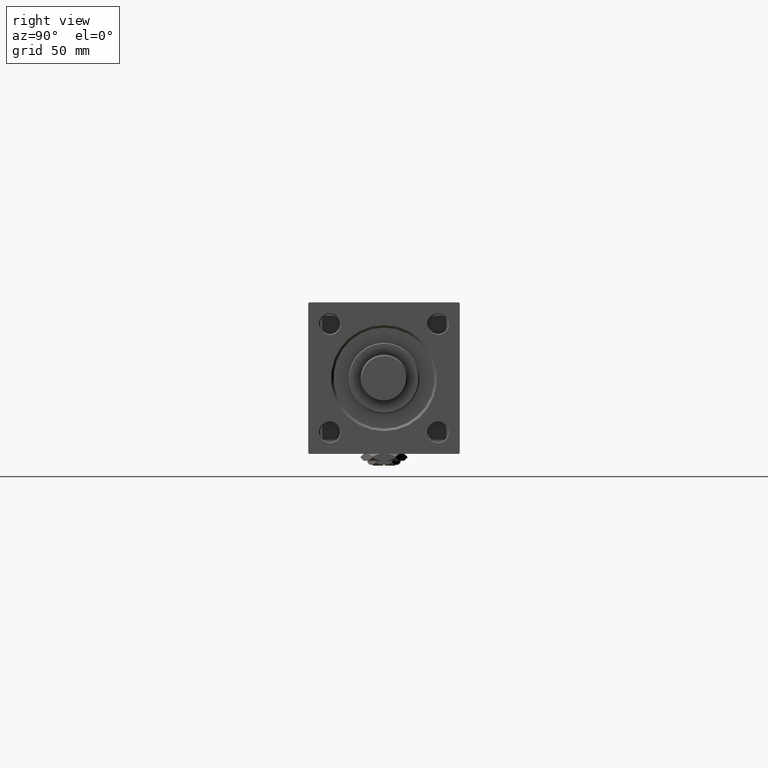
[diagram: clean part render]
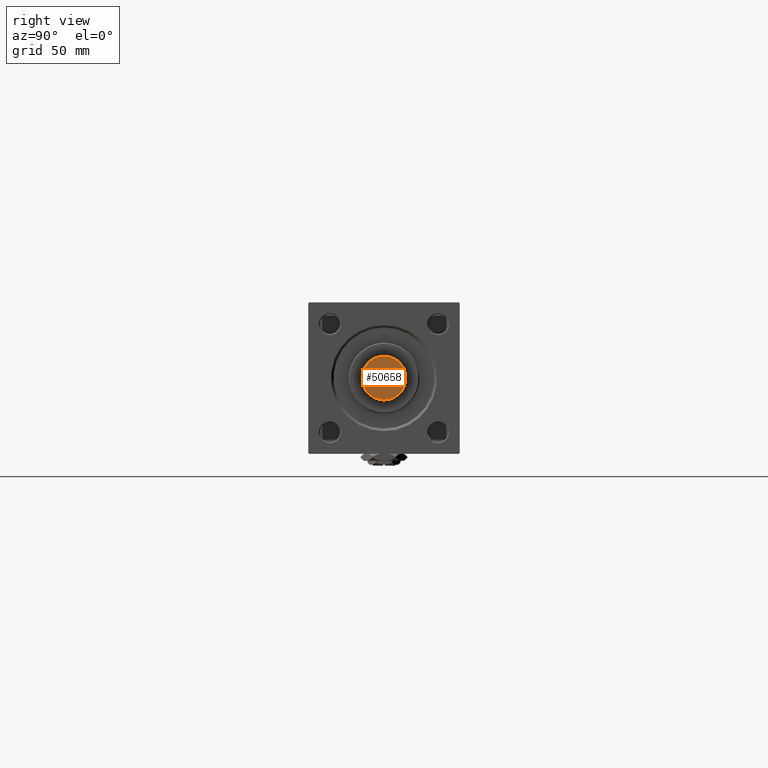
[diagram: same view with one face highlighted and labeled with its STEP entity id]
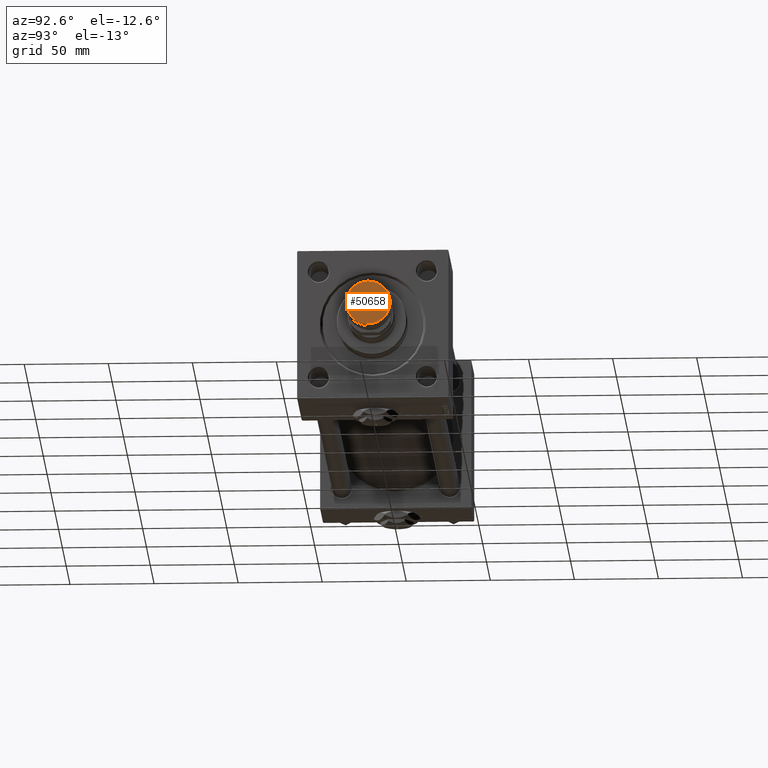
[diagram: same view with one face highlighted and labeled with its STEP entity id]
A machine part, right view. The second image highlights one B-rep face of the part: STEP entity #50658.
A second angle (auxiliary view) of the same face is appended — the face is thin or edge-on in the first view.
In plain terms, the highlighted planar face has unit normal (1, 0, 0).
Its self-contained STEP definition (entity closure, byte-faithful):
#3421 = CARTESIAN_POINT ( 'NONE',  ( 13.00000000000000000, 0.000000000000000000, 0.000000000000000000 ) ) ;
#5833 = CIRCLE ( 'NONE', #43389, 13.00000000000000000 ) ;
#6496 = EDGE_CURVE ( 'NONE', #39241, #44898, #35125, .T. ) ;
#12558 = CARTESIAN_POINT ( 'NONE',  ( 0.000000000000000000, 0.000000000000000000, 0.000000000000000000 ) ) ;
#12825 = DIRECTION ( 'NONE',  ( 0.000000000000000000, 0.000000000000000000, 1.000000000000000000 ) ) ;
#16044 = DIRECTION ( 'NONE',  ( 1.000000000000000000, 0.000000000000000000, 0.000000000000000000 ) ) ;
#16373 = CARTESIAN_POINT ( 'NONE',  ( 0.000000000000000000, 0.000000000000000000, 0.000000000000000000 ) ) ;
#19824 = DIRECTION ( 'NONE',  ( 1.000000000000000000, 0.000000000000000000, -0.000000000000000000 ) ) ;
#23856 = ORIENTED_EDGE ( 'NONE', *, *, #26503, .T. ) ;
#24353 = PLANE ( 'NONE',  #34854 ) ;
#26503 = EDGE_CURVE ( 'NONE', #44898, #39241, #5833, .T. ) ;
#30351 = ORIENTED_EDGE ( 'NONE', *, *, #6496, .T. ) ;
#30601 = CARTESIAN_POINT ( 'NONE',  ( 0.000000000000000000, 0.000000000000000000, 0.000000000000000000 ) ) ;
#30845 = DIRECTION ( 'NONE',  ( 1.000000000000000000, 0.000000000000000000, 0.000000000000000000 ) ) ;
#31821 = DIRECTION ( 'NONE',  ( 0.000000000000000000, 0.000000000000000000, 1.000000000000000000 ) ) ;
#34854 = AXIS2_PLACEMENT_3D ( 'NONE', #16373, #31821, #19824 ) ;
#35125 = CIRCLE ( 'NONE', #48777, 13.00000000000000000 ) ;
#39241 = VERTEX_POINT ( 'NONE', #3421 ) ;
#43389 = AXIS2_PLACEMENT_3D ( 'NONE', #30601, #46891, #30845 ) ;
#44898 = VERTEX_POINT ( 'NONE', #52389 ) ;
#46891 = DIRECTION ( 'NONE',  ( 0.000000000000000000, 0.000000000000000000, 1.000000000000000000 ) ) ;
#48777 = AXIS2_PLACEMENT_3D ( 'NONE', #12558, #12825, #16044 ) ;
#50649 = EDGE_LOOP ( 'NONE', ( #30351, #23856 ) ) ;
#50658 = ADVANCED_FACE ( 'NONE', ( #52638 ), #24353, .T. ) ;
#52389 = CARTESIAN_POINT ( 'NONE',  ( -13.00000000000000000, 1.622657008870242882E-15, 0.000000000000000000 ) ) ;
#52638 = FACE_OUTER_BOUND ( 'NONE', #50649, .T. ) ;